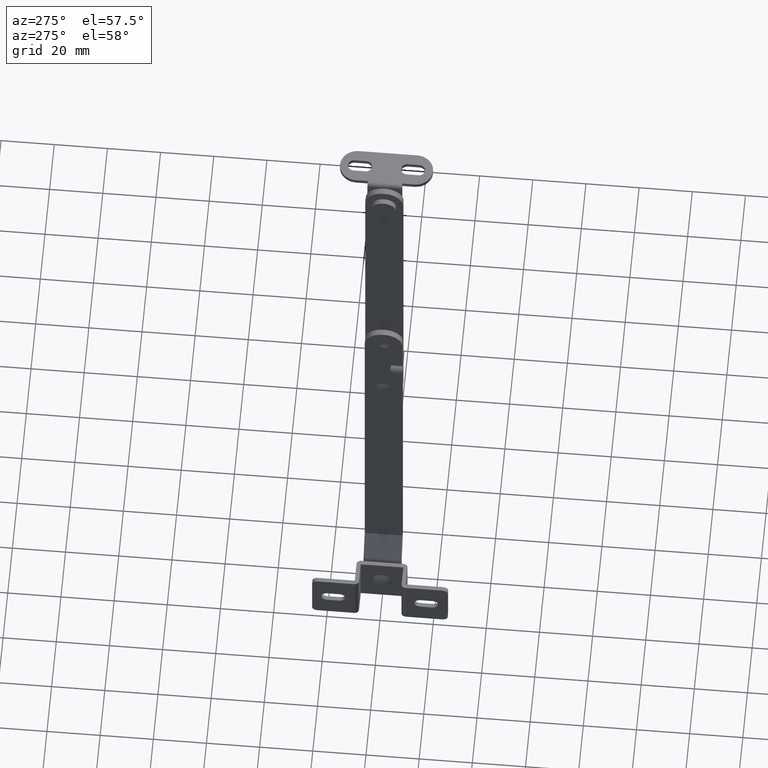
[diagram: clean part render]
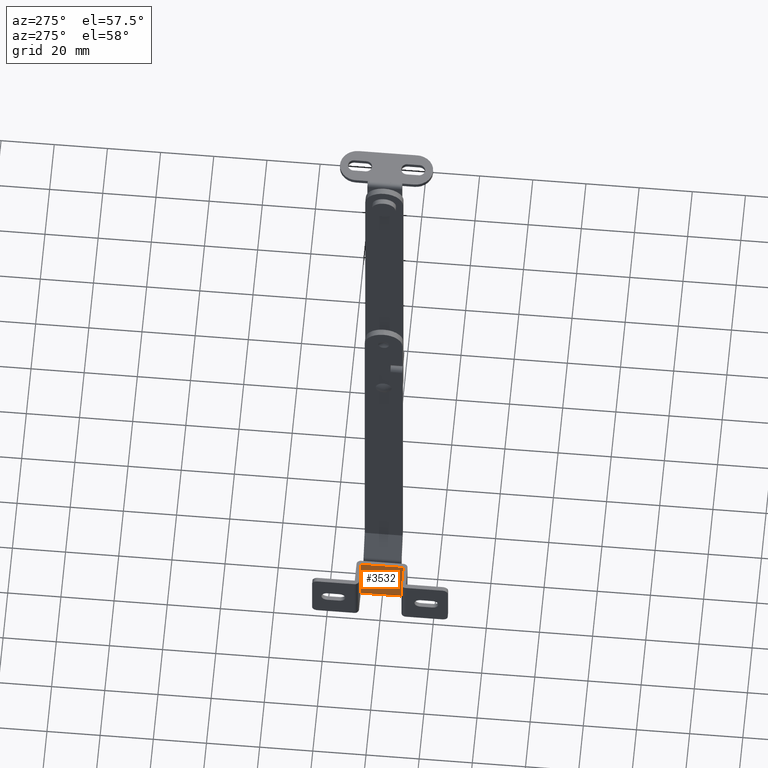
[diagram: same view with one face highlighted and labeled with its STEP entity id]
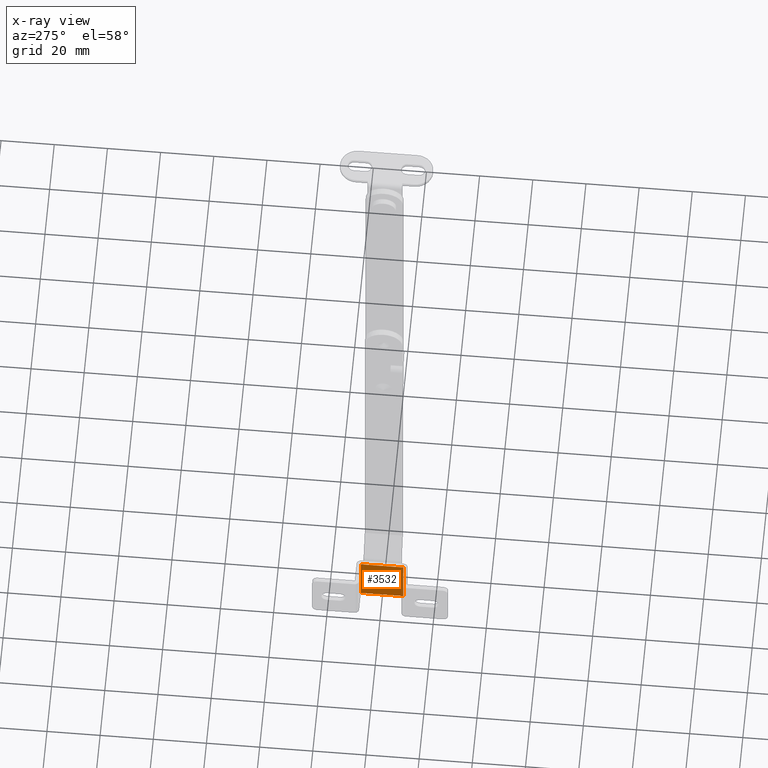
[diagram: x-ray of the same camera — body ghosted, the highlighted face saturated]
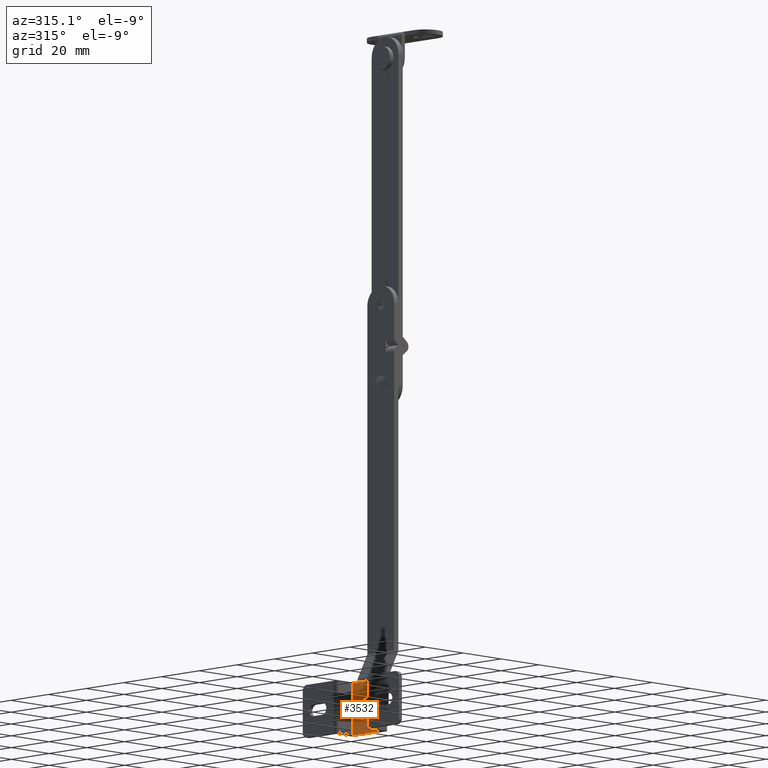
[diagram: same view with one face highlighted and labeled with its STEP entity id]
A machine part, auxiliary view. The second image highlights one B-rep face of the part: STEP entity #3532.
The next image is the same camera in x-ray: the body ghosted, the highlighted face saturated — about 0% of this face is hidden behind the body in this view.
A second angle (auxiliary view) of the same face is appended — the face is thin or edge-on in the first view.
In plain terms, the highlighted face is a freeform B-spline surface patch.
Its self-contained STEP definition (entity closure, byte-faithful):
#2408=CARTESIAN_POINT('',(8.999999999997792,-0.968612595400080,-122.354666111825300));
#2409=VERTEX_POINT('',#2408);
#2410=CARTESIAN_POINT('',(9.000000000000002,-1.500000000000196,-123.499999898093290));
#2411=VERTEX_POINT('',#2410);
#2412=CARTESIAN_POINT('',(8.999999999997792,-0.968612595400080,-122.354666111825300));
#2413=CARTESIAN_POINT('',(8.999999999998014,-1.113863583581262,-122.477254646818390));
#2414=CARTESIAN_POINT('',(8.999999999998714,-1.391272586426086,-122.821763366504300));
#2415=CARTESIAN_POINT('',(8.999999999999522,-1.500536539902981,-123.255523410093500));
#2416=CARTESIAN_POINT('',(9.000000000000002,-1.500000000000196,-123.499999898093290));
#2417=B_SPLINE_CURVE_WITH_KNOTS('',3,(#2412,#2413,#2414,#2415,#2416),.UNSPECIFIED.,.F.,.U.,(4,1,4),(0.000000213400349,0.570222303170366,1.303362873285085),.UNSPECIFIED.);
#2418=EDGE_CURVE('',#2409,#2411,#2417,.T.);
#2472=CARTESIAN_POINT('',(9.000000000003517,1.088061623562018,-122.467468244069100));
#2473=VERTEX_POINT('',#2472);
#2479=CARTESIAN_POINT('',(9.000000000000002,1.499999999999798,-123.500000101906710));
#2480=VERTEX_POINT('',#2479);
#2481=CARTESIAN_POINT('',(9.000000000000002,1.499999999999798,-123.500000101906710));
#2482=CARTESIAN_POINT('',(9.000000000000574,1.500094016138223,-123.333905670844200));
#2483=CARTESIAN_POINT('',(9.000000000001846,1.436299547337639,-122.954358321467790));
#2484=CARTESIAN_POINT('',(9.000000000002997,1.235304991307720,-122.622182614262300));
#2485=CARTESIAN_POINT('',(9.000000000003517,1.088061623562018,-122.467468244069100));
#2486=B_SPLINE_CURVE_WITH_KNOTS('',3,(#2481,#2482,#2483,#2484,#2485),.UNSPECIFIED.,.F.,.U.,(4,1,4),(0.000000215309984,0.498302147075256,1.138934044268902),.UNSPECIFIED.);
#2487=EDGE_CURVE('',#2480,#2473,#2486,.T.);
#2489=CARTESIAN_POINT('',(9.0,-1.989520E-013,-125.0));
#2490=VERTEX_POINT('',#2489);
#2491=CARTESIAN_POINT('',(9.0,-1.989520E-013,-125.0));
#2492=CARTESIAN_POINT('',(9.000000000000004,0.196374629765273,-125.000194068600710));
#2493=CARTESIAN_POINT('',(8.999999999999993,0.588955546107430,-124.921818222626600));
#2494=CARTESIAN_POINT('',(9.000000000000018,1.046616619259275,-124.616095123752500));
#2495=CARTESIAN_POINT('',(8.999999999999996,1.401348550531452,-124.137661884474500));
#2496=CARTESIAN_POINT('',(8.999999999999995,1.500501749172332,-123.745571403284000));
#2497=CARTESIAN_POINT('',(9.000000000000002,1.499999999999798,-123.500000101906710));
#2498=B_SPLINE_CURVE_WITH_KNOTS('',3,(#2491,#2492,#2493,#2494,#2495,#2496,#2497),.UNSPECIFIED.,.F.,.U.,(4,1,1,1,4),(0.000000459808684,0.589113369119361,1.178215900984774,1.620021289901520,2.356430767539231),.UNSPECIFIED.);
#2499=EDGE_CURVE('',#2490,#2480,#2498,.T.);
#2501=CARTESIAN_POINT('',(9.000000000000002,-1.500000000000196,-123.499999898093290));
#2502=CARTESIAN_POINT('',(9.000000000000005,-1.500225737775053,-123.696396372596500));
#2503=CARTESIAN_POINT('',(8.999999999999998,-1.441289851111418,-123.990734232989890));
#2504=CARTESIAN_POINT('',(9.000000000000002,-1.232001815714177,-124.382226907154110));
#2505=CARTESIAN_POINT('',(9.000000000000016,-0.932211843724868,-124.713328236842300));
#2506=CARTESIAN_POINT('',(8.999999999999952,-0.490906992301556,-124.949122035114700));
#2507=CARTESIAN_POINT('',(9.000000000000062,-0.147250869982352,-125.000041890341810));
#2508=CARTESIAN_POINT('',(9.0,-1.989520E-013,-125.0));
#2509=B_SPLINE_CURVE_WITH_KNOTS('',3,(#2501,#2502,#2503,#2504,#2505,#2506,#2507,#2508),.UNSPECIFIED.,.F.,.U.,(4,1,1,1,1,4),(0.000000459268459,0.589113397398892,0.883685197253238,1.325465789790797,1.914625473615413,2.356430882423104),.UNSPECIFIED.);
#2510=EDGE_CURVE('',#2411,#2490,#2509,.T.);
#2529=CARTESIAN_POINT('',(9.0,-1.989520E-013,-122.0));
#2530=VERTEX_POINT('',#2529);
#2531=CARTESIAN_POINT('',(9.0,-1.989520E-013,-122.0));
#2532=CARTESIAN_POINT('',(8.999999999999556,-0.197473846170988,-121.999766561714200));
#2533=CARTESIAN_POINT('',(8.999999999998744,-0.548256917000025,-122.070394216373800));
#2534=CARTESIAN_POINT('',(8.999999999998066,-0.851398983760385,-122.255447302538300));
#2535=CARTESIAN_POINT('',(8.999999999997792,-0.968612595400080,-122.354666111825300));
#2536=B_SPLINE_CURVE_WITH_KNOTS('',3,(#2531,#2532,#2533,#2534,#2535),.UNSPECIFIED.,.F.,.U.,(4,1,4),(0.000000145798087,0.592340637100721,1.053075827230625),.UNSPECIFIED.);
#2537=EDGE_CURVE('',#2530,#2409,#2536,.T.);
#2539=CARTESIAN_POINT('',(9.000000000003517,1.088061623562018,-122.467468244069100));
#2540=CARTESIAN_POINT('',(9.000000000003023,0.931174658112090,-122.301545958131400));
#2541=CARTESIAN_POINT('',(9.000000000001872,0.583252184763127,-122.072933964623200));
#2542=CARTESIAN_POINT('',(9.000000000000581,0.177542002780931,-121.999851119342790));
#2543=CARTESIAN_POINT('',(9.0,-1.989520E-013,-122.0));
#2544=B_SPLINE_CURVE_WITH_KNOTS('',3,(#2539,#2540,#2541,#2542,#2543),.UNSPECIFIED.,.F.,.U.,(4,1,4),(0.000000151178748,0.684841824401440,1.217497630699422),.UNSPECIFIED.);
#2545=EDGE_CURVE('',#2473,#2530,#2544,.T.);
#3248=CARTESIAN_POINT('',(9.0,8.0,-113.500000000004600));
#3249=VERTEX_POINT('',#3248);
#3255=CARTESIAN_POINT('',(9.0,-8.0,-113.500000000004600));
#3256=VERTEX_POINT('',#3255);
#3257=CARTESIAN_POINT('',(9.0,8.0,-113.500000000004600));
#3258=CARTESIAN_POINT('',(9.0,-8.0,-113.500000000004600));
#3259=QUASI_UNIFORM_CURVE('',1,(#3257,#3258),.UNSPECIFIED.,.F.,.U.);
#3260=EDGE_CURVE('',#3249,#3256,#3259,.T.);
#3430=CARTESIAN_POINT('',(9.0,-8.0,-133.500000000004600));
#3431=VERTEX_POINT('',#3430);
#3437=CARTESIAN_POINT('',(9.0,8.0,-133.500000000004600));
#3438=VERTEX_POINT('',#3437);
#3439=CARTESIAN_POINT('',(9.0,8.0,-133.500000000004600));
#3440=CARTESIAN_POINT('',(9.0,-8.0,-133.500000000004600));
#3441=QUASI_UNIFORM_CURVE('',1,(#3439,#3440),.UNSPECIFIED.,.F.,.U.);
#3442=EDGE_CURVE('',#3438,#3431,#3441,.T.);
#3499=CARTESIAN_POINT('',(9.0,-8.0,-133.500000000004600));
#3500=CARTESIAN_POINT('',(9.0,-8.0,-113.500000000004600));
#3501=QUASI_UNIFORM_CURVE('',1,(#3499,#3500),.UNSPECIFIED.,.F.,.U.);
#3502=EDGE_CURVE('',#3431,#3256,#3501,.T.);
#3509=CARTESIAN_POINT('',(9.0,-8.799199968988898,-134.498999961240710));
#3510=CARTESIAN_POINT('',(9.0,-8.799199968988898,-112.500999502326710));
#3511=CARTESIAN_POINT('',(9.0,8.799200398142340,-134.498999961240710));
#3512=CARTESIAN_POINT('',(9.0,8.799200398142340,-112.500999502326710));
#3513=B_SPLINE_SURFACE_WITH_KNOTS('',1,1,((#3509,#3511),(#3510,#3512)),.UNSPECIFIED.,.F.,.F.,.U.,(2,2),(2,2),(0.0,21.998000458914049),(0.0,17.598400367131241),.UNSPECIFIED.);
#3514=ORIENTED_EDGE('',*,*,#3260,.F.);
#3515=CARTESIAN_POINT('',(9.0,8.0,-133.500000000004600));
#3516=CARTESIAN_POINT('',(9.0,8.0,-113.500000000004600));
#3517=QUASI_UNIFORM_CURVE('',1,(#3515,#3516),.UNSPECIFIED.,.F.,.U.);
#3518=EDGE_CURVE('',#3438,#3249,#3517,.T.);
#3519=ORIENTED_EDGE('',*,*,#3518,.F.);
#3520=ORIENTED_EDGE('',*,*,#3442,.T.);
#3521=ORIENTED_EDGE('',*,*,#3502,.T.);
#3522=EDGE_LOOP('',(#3514,#3519,#3520,#3521));
#3523=FACE_OUTER_BOUND('',#3522,.T.);
#3524=ORIENTED_EDGE('',*,*,#2510,.T.);
#3525=ORIENTED_EDGE('',*,*,#2499,.T.);
#3526=ORIENTED_EDGE('',*,*,#2487,.T.);
#3527=ORIENTED_EDGE('',*,*,#2545,.T.);
#3528=ORIENTED_EDGE('',*,*,#2537,.T.);
#3529=ORIENTED_EDGE('',*,*,#2418,.T.);
#3530=EDGE_LOOP('',(#3524,#3525,#3526,#3527,#3528,#3529));
#3531=FACE_BOUND('',#3530,.T.);
#3532=ADVANCED_FACE('',(#3523,#3531),#3513,.T.);